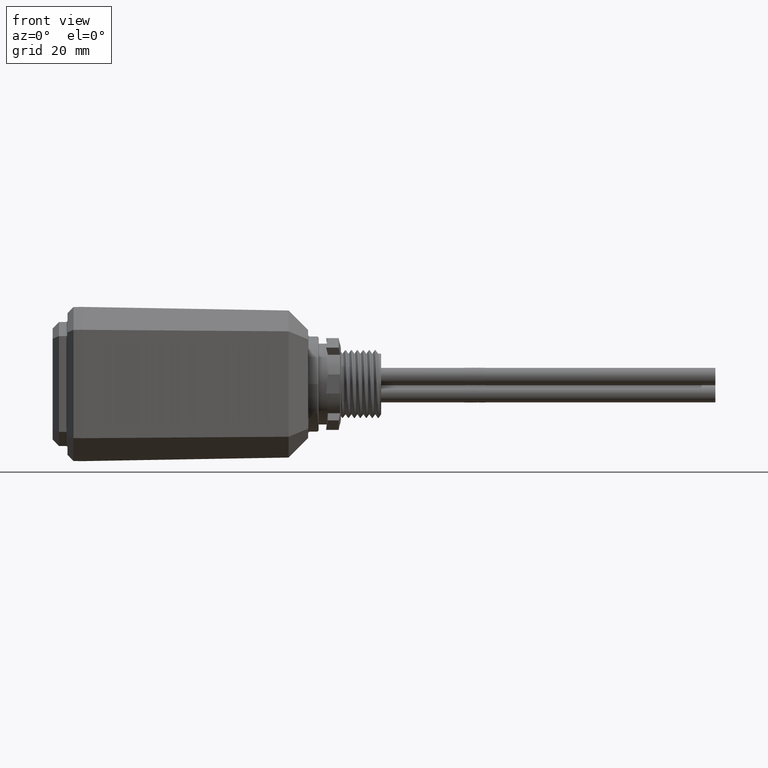
[diagram: clean part render]
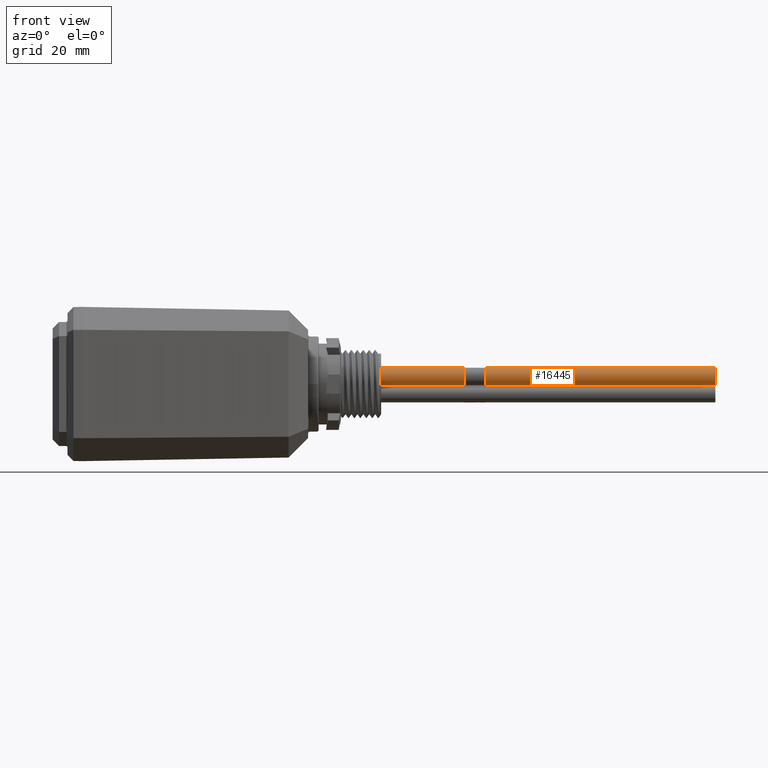
[diagram: same view with one face highlighted and labeled with its STEP entity id]
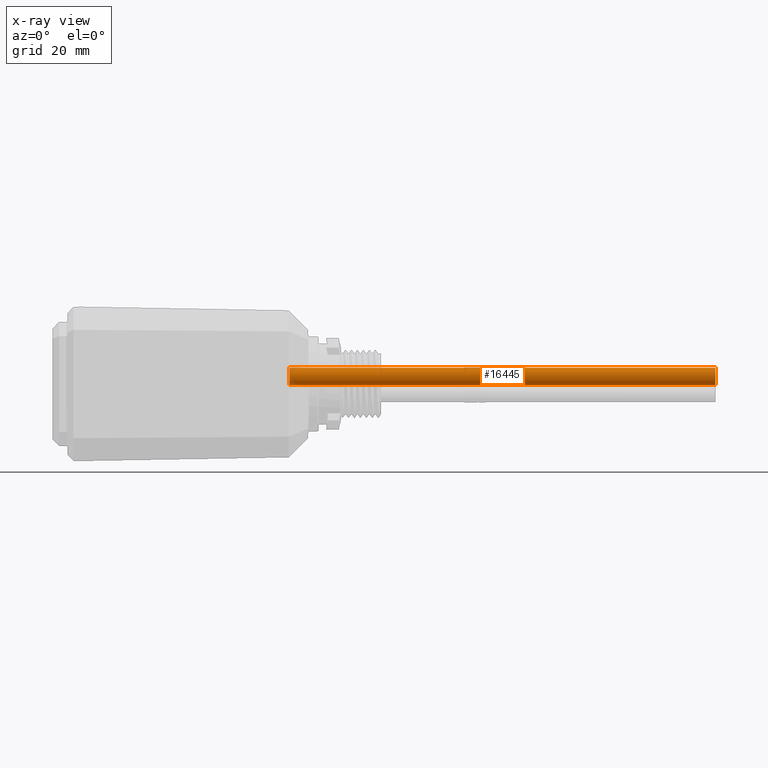
[diagram: x-ray of the same camera — body ghosted, the highlighted face saturated]
A machine part, front view. The second image highlights one B-rep face of the part: STEP entity #16445.
The next image is the same camera in x-ray: the body ghosted, the highlighted face saturated — about 1% of this face is hidden behind the body in this view.
In plain terms, the highlighted face is a freeform B-spline surface patch.
Its self-contained STEP definition (entity closure, byte-faithful):
#474 = CARTESIAN_POINT ( 'NONE',  ( 5.411018466745666400, 0.9294735889950731500, -2.188531562838795800 ) ) ;
#1203 = CARTESIAN_POINT ( 'NONE',  ( 0.3004092761689646800, 0.9300732545133461000, -1.983533603864545200 ) ) ;
#1766 = VECTOR ( 'NONE', #19957, 39.37007874015748100 ) ;
#2401 = AXIS2_PLACEMENT_3D ( 'NONE', #11433, #11427, #11390 ) ;
#2912 = EDGE_LOOP ( 'NONE', ( #33352, #16099, #24943, #30333 ) ) ;
#3141 = EDGE_CURVE ( 'NONE', #28315, #10231, #12250, .T. ) ;
#3224 = CARTESIAN_POINT ( 'NONE',  ( 0.2997184667456669900, 0.9294735889950740400, -2.188531562838792200 ) ) ;
#4399 = VERTEX_POINT ( 'NONE', #9820 ) ;
#9820 = CARTESIAN_POINT ( 'NONE',  ( 5.411709276168963400, 0.9300732545133452200, -1.983533603864548800 ) ) ;
#10231 = VERTEX_POINT ( 'NONE', #474 ) ;
#11390 = DIRECTION ( 'NONE',  ( 0.003369802064866775400, 0.002925197650107685200, 0.9999900437768125500 ) ) ;
#11427 = DIRECTION ( 'NONE',  ( -0.9999930519162652000, -0.001584056151563255800, 0.003374445925268835300 ) ) ;
#11433 = CARTESIAN_POINT ( 'NONE',  ( 0.3000638714573158300, 0.9297734217542100700, -2.086032583351668600 ) ) ;
#11448 = CIRCLE ( 'NONE', #2401, 0.1025000000000001000 ) ;
#11551 = AXIS2_PLACEMENT_3D ( 'NONE', #31433, #31388, #31199 ) ;
#12250 = LINE ( 'NONE', #20028, #1766 ) ;
#12741 = EDGE_CURVE ( 'NONE', #28315, #23401, #11448, .T. ) ;
#13985 = DIRECTION ( 'NONE',  ( 1.000000000000000000, -1.603416739575605000E-016, -6.948139204827621900E-016 ) ) ;
#16099 = ORIENTED_EDGE ( 'NONE', *, *, #3141, .T. ) ;
#16445 = ADVANCED_FACE ( 'NONE', ( #24491 ), #20291, .F. ) ;
#16921 = EDGE_CURVE ( 'NONE', #10231, #4399, #22922, .T. ) ;
#19957 = DIRECTION ( 'NONE',  ( 1.000000000000000000, -1.603416739575605000E-016, -6.948139204827621900E-016 ) ) ;
#20028 = CARTESIAN_POINT ( 'NONE',  ( 0.2997184667456669900, 0.9294735889950740400, -2.188531562838792200 ) ) ;
#20291 =( BOUNDED_SURFACE ( )  B_SPLINE_SURFACE ( 3, 1, ( 
 ( #28210, #31232 ),
 ( #32300, #32902 ),
 ( #33054, #33683 ),
 ( #33943, #34055 ) ),
 .UNSPECIFIED., .F., .F., .F. ) 
 B_SPLINE_SURFACE_WITH_KNOTS ( ( 4, 4 ),
 ( 2, 2 ),
 ( 0.0000000000000000000, 1.000000000000000000 ),
 ( 0.0000000000000000000, 1.000000000000000000 ),
 .UNSPECIFIED. ) 
 GEOMETRIC_REPRESENTATION_ITEM ( )  RATIONAL_B_SPLINE_SURFACE ( (
 ( 1.000000000000000000, 1.000000000000000000),
 ( 0.3333333333333333700, 0.3333333333333333700),
 ( 0.3333333333333333700, 0.3333333333333333700),
 ( 1.000000000000000000, 1.000000000000000000) ) ) 
 REPRESENTATION_ITEM ( '' )  SURFACE ( )  );
#22572 = CARTESIAN_POINT ( 'NONE',  ( 0.3004092761689646800, 0.9300732545133461000, -1.983533603864545200 ) ) ;
#22922 = CIRCLE ( 'NONE', #11551, 0.1025000000000001000 ) ;
#23401 = VERTEX_POINT ( 'NONE', #1203 ) ;
#24154 = EDGE_CURVE ( 'NONE', #23401, #4399, #27014, .T. ) ;
#24491 = FACE_OUTER_BOUND ( 'NONE', #2912, .T. ) ;
#24943 = ORIENTED_EDGE ( 'NONE', *, *, #16921, .T. ) ;
#26915 = VECTOR ( 'NONE', #13985, 39.37007874015748100 ) ;
#27014 = LINE ( 'NONE', #22572, #26915 ) ;
#28210 = CARTESIAN_POINT ( 'NONE',  ( 0.2997184667456669900, 0.9294735889950740400, -2.188531562838792200 ) ) ;
#28315 = VERTEX_POINT ( 'NONE', #3224 ) ;
#30333 = ORIENTED_EDGE ( 'NONE', *, *, #24154, .F. ) ;
#31199 = DIRECTION ( 'NONE',  ( 0.003369802064867775100, 0.002925197650107685200, 0.9999900437768125500 ) ) ;
#31232 = CARTESIAN_POINT ( 'NONE',  ( 5.411018466745666400, 0.9294735889950731500, -2.188531562838795800 ) ) ;
#31388 = DIRECTION ( 'NONE',  ( -0.9999930519162652000, -0.001584056151563255800, 0.003374445925268835300 ) ) ;
#31433 = CARTESIAN_POINT ( 'NONE',  ( 5.411363871457314900, 0.9297734217542091800, -2.086032583351672600 ) ) ;
#32300 = CARTESIAN_POINT ( 'NONE',  ( 0.3000452185625027100, 0.7244747232647680300, -2.187932995767962700 ) ) ;
#32902 = CARTESIAN_POINT ( 'NONE',  ( 5.411345218562502200, 0.7244747232647671400, -2.187932995767966300 ) ) ;
#33054 = CARTESIAN_POINT ( 'NONE',  ( 0.3007360279858004000, 0.7250743887830398700, -1.982935036793716000 ) ) ;
#33352 = ORIENTED_EDGE ( 'NONE', *, *, #12741, .F. ) ;
#33683 = CARTESIAN_POINT ( 'NONE',  ( 5.412036027985799100, 0.7250743887830390900, -1.982935036793720000 ) ) ;
#33943 = CARTESIAN_POINT ( 'NONE',  ( 0.3004092761689646800, 0.9300732545133461000, -1.983533603864545200 ) ) ;
#34055 = CARTESIAN_POINT ( 'NONE',  ( 5.411709276168964200, 0.9300732545133452200, -1.983533603864548800 ) ) ;